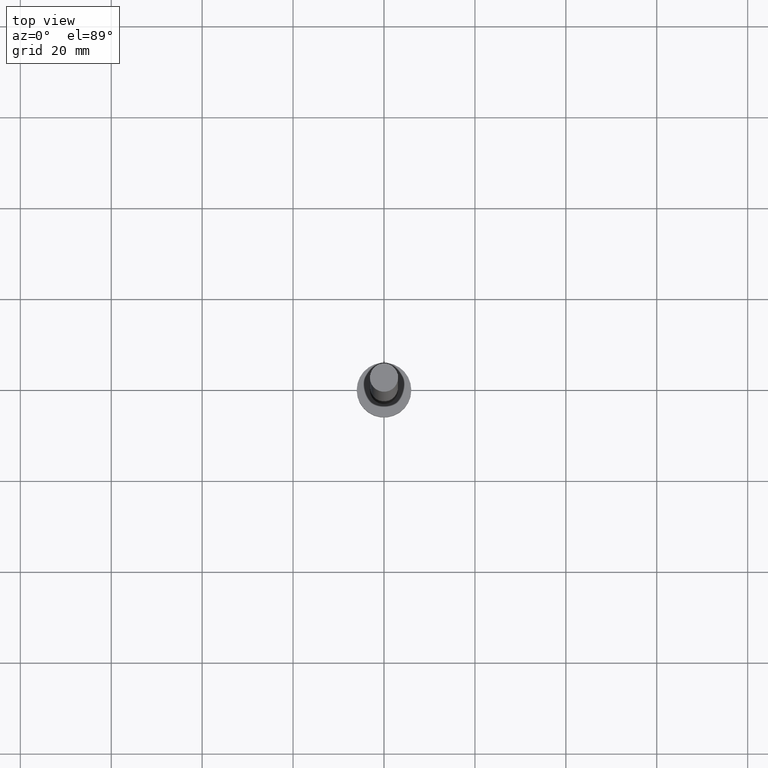
[diagram: clean part render]
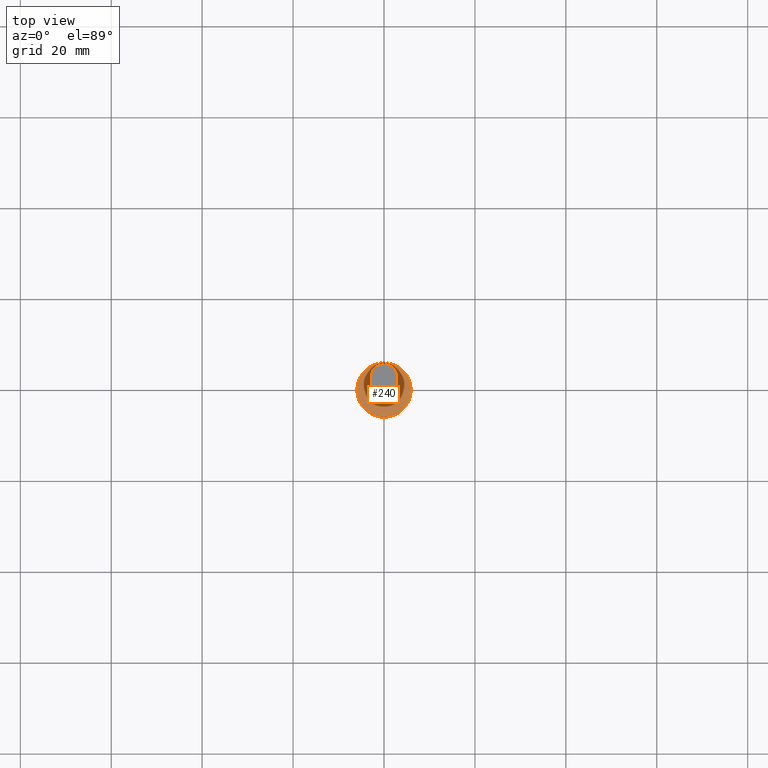
[diagram: same view with one face highlighted and labeled with its STEP entity id]
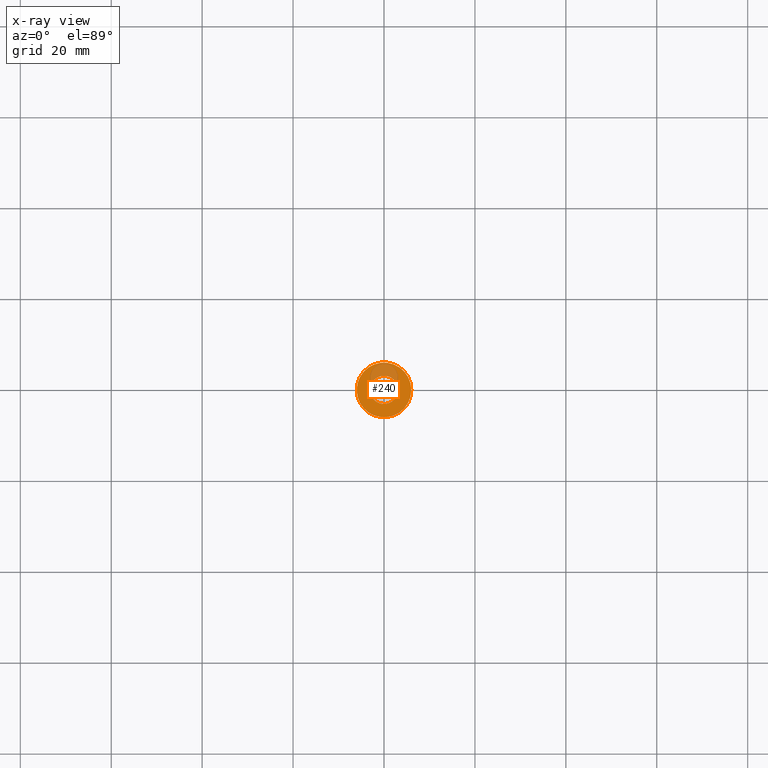
[diagram: x-ray of the same camera — body ghosted, the highlighted face saturated]
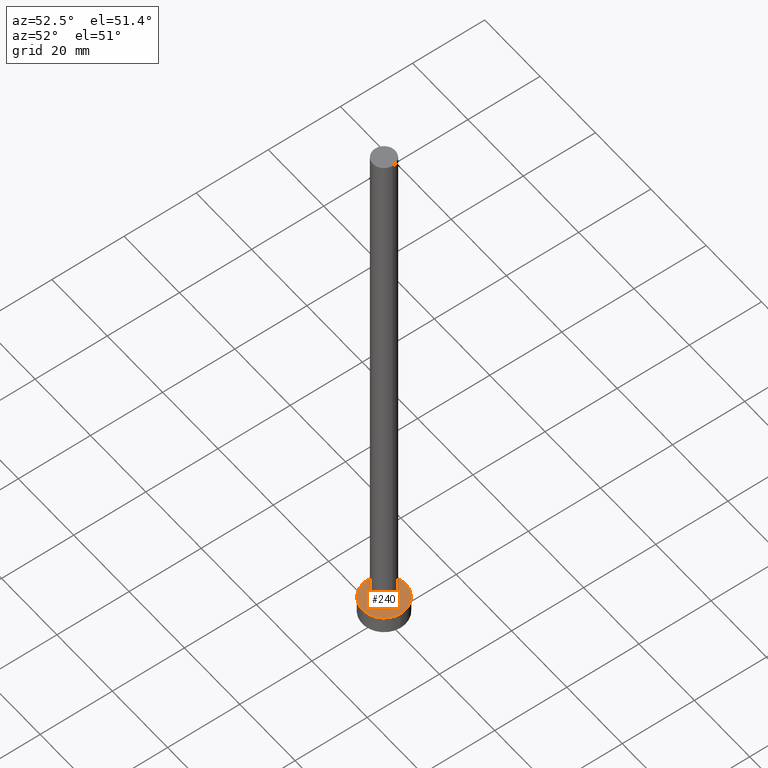
[diagram: same view with one face highlighted and labeled with its STEP entity id]
A machine part, top view. The second image highlights one B-rep face of the part: STEP entity #240.
The next image is the same camera in x-ray: the body ghosted, the highlighted face saturated — about 20% of this face is hidden behind the body in this view.
A second angle (auxiliary view) of the same face is appended — the face is thin or edge-on in the first view.
In plain terms, the highlighted planar face has unit normal (0, 0, 1).
Its self-contained STEP definition (entity closure, byte-faithful):
#5 = EDGE_CURVE ( 'NONE', #112, #130, #16, .T. ) ;
#7 = DIRECTION ( 'NONE',  ( 1.000000000000000000, 0.000000000000000000, -0.000000000000000000 ) ) ;
#15 = CARTESIAN_POINT ( 'NONE',  ( 0.000000000000000000, 0.000000000000000000, 5.000000000000000000 ) ) ;
#16 = CIRCLE ( 'NONE', #124, 3.100000000000000089 ) ;
#21 = FACE_OUTER_BOUND ( 'NONE', #34, .T. ) ;
#25 = CARTESIAN_POINT ( 'NONE',  ( -3.100000000000000089, 0.000000000000000000, 5.000000000000000000 ) ) ;
#26 = AXIS2_PLACEMENT_3D ( 'NONE', #84, #169, #7 ) ;
#29 = VERTEX_POINT ( 'NONE', #192 ) ;
#34 = EDGE_LOOP ( 'NONE', ( #73, #162 ) ) ;
#48 = DIRECTION ( 'NONE',  ( 0.000000000000000000, 0.000000000000000000, 1.000000000000000000 ) ) ;
#58 = DIRECTION ( 'NONE',  ( 1.000000000000000000, 0.000000000000000000, 0.000000000000000000 ) ) ;
#73 = ORIENTED_EDGE ( 'NONE', *, *, #113, .T. ) ;
#79 = DIRECTION ( 'NONE',  ( 0.000000000000000000, 0.000000000000000000, 1.000000000000000000 ) ) ;
#84 = CARTESIAN_POINT ( 'NONE',  ( 0.000000000000000000, 0.000000000000000000, 5.000000000000000000 ) ) ;
#100 = PLANE ( 'NONE',  #26 ) ;
#104 = AXIS2_PLACEMENT_3D ( 'NONE', #230, #48, #58 ) ;
#112 = VERTEX_POINT ( 'NONE', #220 ) ;
#113 = EDGE_CURVE ( 'NONE', #29, #146, #249, .T. ) ;
#121 = AXIS2_PLACEMENT_3D ( 'NONE', #154, #190, #215 ) ;
#124 = AXIS2_PLACEMENT_3D ( 'NONE', #15, #170, #246 ) ;
#130 = VERTEX_POINT ( 'NONE', #25 ) ;
#134 = DIRECTION ( 'NONE',  ( 1.000000000000000000, 0.000000000000000000, 0.000000000000000000 ) ) ;
#140 = CIRCLE ( 'NONE', #172, 6.000000000000000888 ) ;
#141 = EDGE_CURVE ( 'NONE', #130, #112, #196, .T. ) ;
#144 = ORIENTED_EDGE ( 'NONE', *, *, #141, .F. ) ;
#146 = VERTEX_POINT ( 'NONE', #210 ) ;
#153 = ORIENTED_EDGE ( 'NONE', *, *, #5, .F. ) ;
#154 = CARTESIAN_POINT ( 'NONE',  ( 0.000000000000000000, 0.000000000000000000, 5.000000000000000000 ) ) ;
#162 = ORIENTED_EDGE ( 'NONE', *, *, #237, .T. ) ;
#169 = DIRECTION ( 'NONE',  ( 0.000000000000000000, 0.000000000000000000, 1.000000000000000000 ) ) ;
#170 = DIRECTION ( 'NONE',  ( 0.000000000000000000, 0.000000000000000000, 1.000000000000000000 ) ) ;
#172 = AXIS2_PLACEMENT_3D ( 'NONE', #254, #79, #134 ) ;
#190 = DIRECTION ( 'NONE',  ( 0.000000000000000000, 0.000000000000000000, 1.000000000000000000 ) ) ;
#192 = CARTESIAN_POINT ( 'NONE',  ( -6.000000000000000888, 0.000000000000000000, 5.000000000000000000 ) ) ;
#196 = CIRCLE ( 'NONE', #121, 3.100000000000000089 ) ;
#210 = CARTESIAN_POINT ( 'NONE',  ( 6.000000000000000888, 7.347880794884120722E-16, 5.000000000000000000 ) ) ;
#211 = FACE_BOUND ( 'NONE', #239, .T. ) ;
#215 = DIRECTION ( 'NONE',  ( 1.000000000000000000, 0.000000000000000000, 0.000000000000000000 ) ) ;
#220 = CARTESIAN_POINT ( 'NONE',  ( 3.100000000000000089, 3.796405077356794918E-16, 5.000000000000000000 ) ) ;
#230 = CARTESIAN_POINT ( 'NONE',  ( 0.000000000000000000, 0.000000000000000000, 5.000000000000000000 ) ) ;
#237 = EDGE_CURVE ( 'NONE', #146, #29, #140, .T. ) ;
#239 = EDGE_LOOP ( 'NONE', ( #144, #153 ) ) ;
#240 = ADVANCED_FACE ( 'NONE', ( #211, #21 ), #100, .T. ) ;
#246 = DIRECTION ( 'NONE',  ( 1.000000000000000000, 0.000000000000000000, 0.000000000000000000 ) ) ;
#249 = CIRCLE ( 'NONE', #104, 6.000000000000000888 ) ;
#254 = CARTESIAN_POINT ( 'NONE',  ( 0.000000000000000000, 0.000000000000000000, 5.000000000000000000 ) ) ;